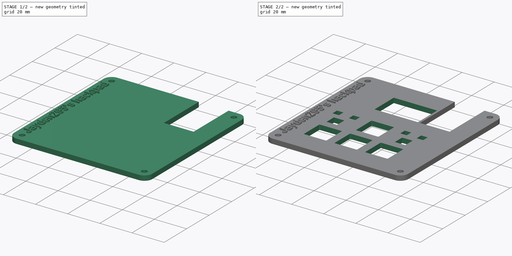
[diagram: build sequence overview — one tinted view per stage of 2, left to right]
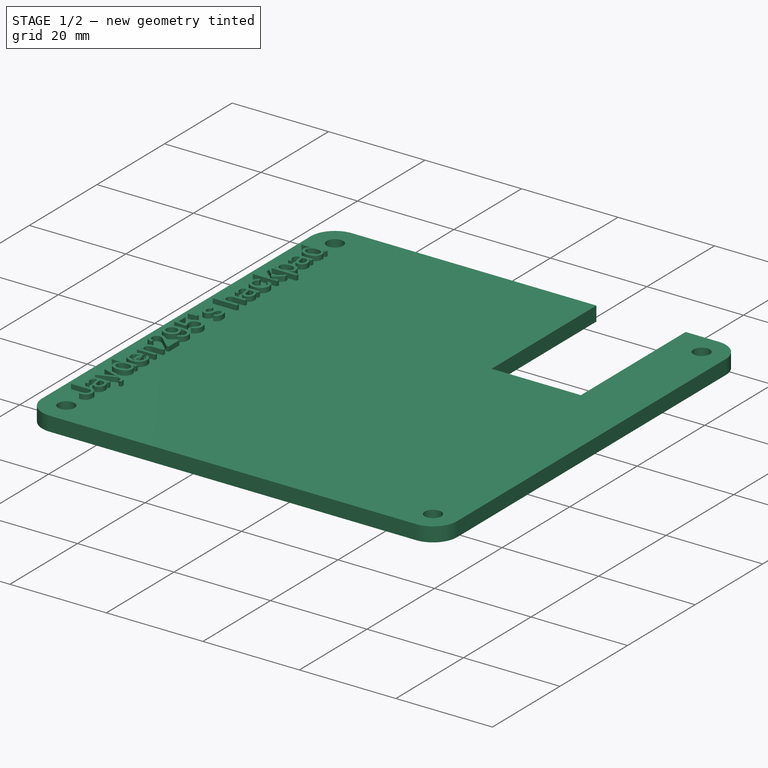
[diagram: stage 1 of 2 — iso view after this stage's code; geometry added in this stage tinted green]
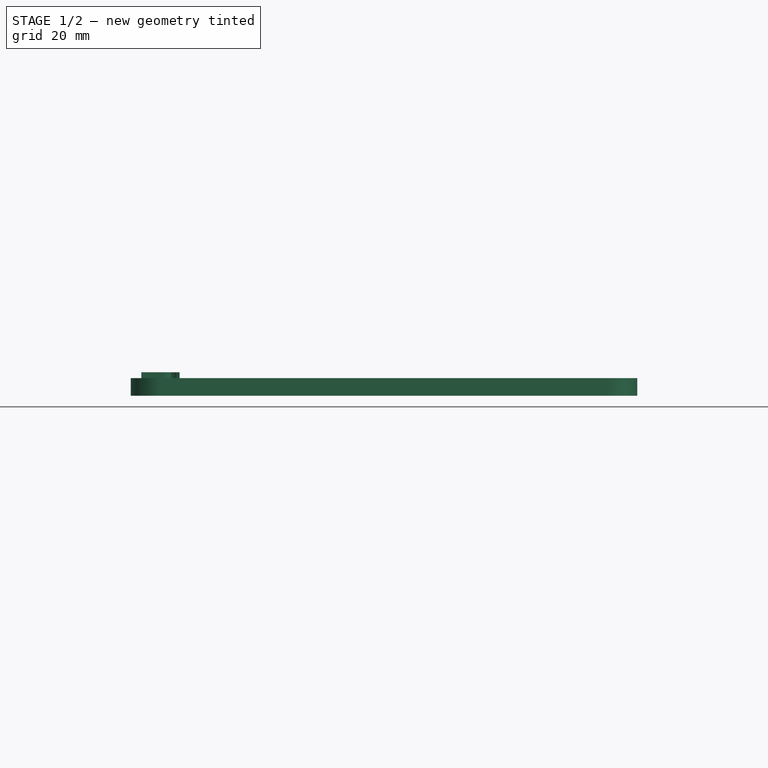
[diagram: stage 1 of 2 — front view after this stage's code; geometry added in this stage tinted green]
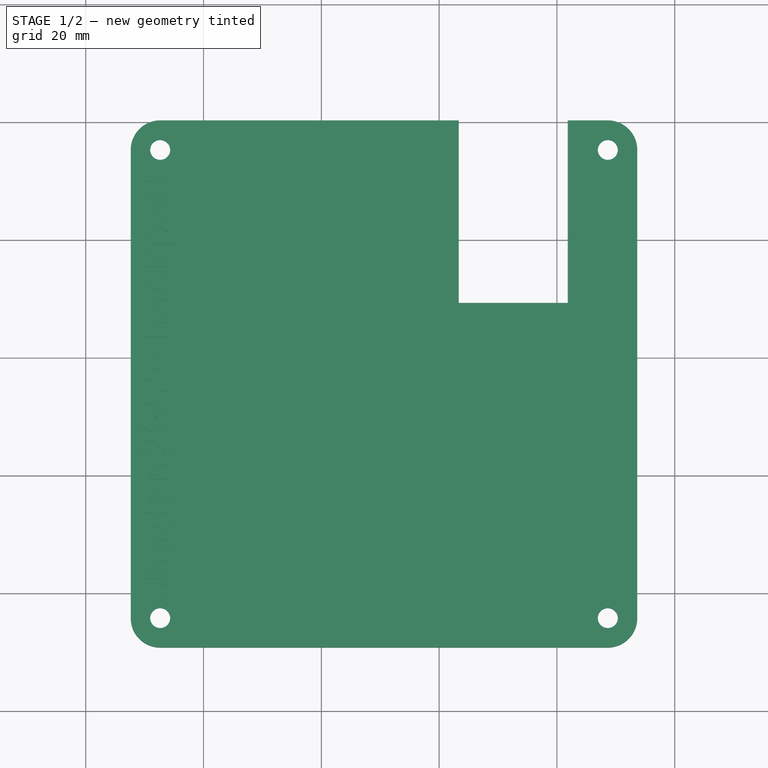
[diagram: stage 1 of 2 — top view after this stage's code; geometry added in this stage tinted green]
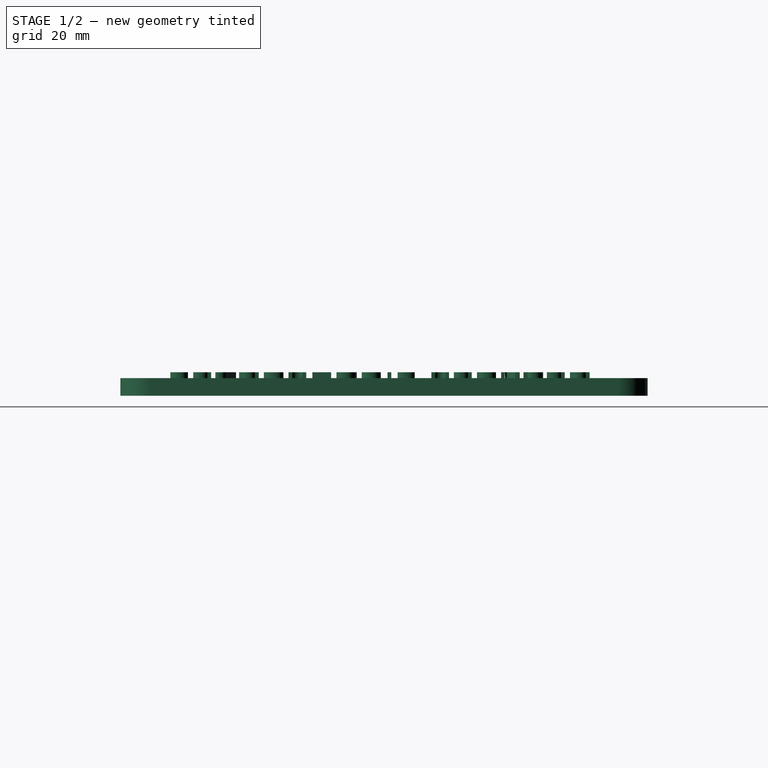
[diagram: stage 1 of 2 — right view after this stage's code; geometry added in this stage tinted green]
FCSTD DOCUMENT  (FreeCAD 1.0RUnknown)
Label: wasdup-plate
License: All rights reserved
LicenseURL: https://en.wikipedia.org/wiki/All_rights_reserved
objects: Sketcher::SketchObject×3, PartDesign::Pocket×2, PartDesign::Pad×1, Part::Part2DObjectPython×1, PartDesign::Body×1, Part::Extrusion×1
note: 18 computed .brp shape members not serialized (recipe doc carries the construction recipe); baked Part::Feature solids carry a one-line shape summary decoded from their .brp

FEATURE [Sketcher::SketchObject] Sketch  label="KeyboardSketch"
  ArcFitTolerance = 1e-06
  FullyConstrained = false
  MakeInternals = false
  sketch-geometry (32):
    g0: LineSegment StartX=22.075 StartY=-2.525 StartZ=0 EndX=35.075 EndY=-2.525 EndZ=0
    g1: LineSegment StartX=22.075 StartY=-16.525 StartZ=0 EndX=35.075 EndY=-16.525 EndZ=0
    g2: LineSegment StartX=21.575 StartY=-3.025 StartZ=0 EndX=21.575 EndY=-16.025 EndZ=0
    g3: LineSegment StartX=35.575 StartY=-3.025 StartZ=0 EndX=35.575 EndY=-16.025 EndZ=0
    g4: ArcOfCircle CenterX=22.075 CenterY=-3.025 CenterZ=0 NormalX=0 NormalY=0 NormalZ=1 AngleXU=0 Radius=0.5 StartAngle=1.5708 EndAngle=3.14159
    g5: ArcOfCircle CenterX=35.075 CenterY=-3.025 CenterZ=0 NormalX=0 NormalY=0 NormalZ=1 AngleXU=0 Radius=0.5 StartAngle=0 EndAngle=1.5708
    g6: ArcOfCircle CenterX=22.075 CenterY=-16.025 CenterZ=0 NormalX=0 NormalY=0 NormalZ=1 AngleXU=0 Radius=0.5 StartAngle=3.14159 EndAngle=4.71239
    g7: ArcOfCircle CenterX=35.075 CenterY=-16.025 CenterZ=0 NormalX=0 NormalY=0 NormalZ=1 AngleXU=0 Radius=0.5 StartAngle=4.71239 EndAngle=6.28319
    g8: LineSegment StartX=3.025 StartY=-21.575 StartZ=0 EndX=16.025 EndY=-21.575 EndZ=0
    g9: LineSegment StartX=3.025 StartY=-35.575 StartZ=0 EndX=16.025 EndY=-35.575 EndZ=0
    g10: LineSegment StartX=2.525 StartY=-22.075 StartZ=0 EndX=2.525 EndY=-35.075 EndZ=0
    g11: LineSegment StartX=16.525 StartY=-22.075 StartZ=0 EndX=16.525 EndY=-35.075 EndZ=0
    g12: ArcOfCircle CenterX=3.025 CenterY=-22.075 CenterZ=0 NormalX=0 NormalY=0 NormalZ=1 AngleXU=0 Radius=0.5 StartAngle=1.5708 EndAngle=3.14159
    g13: ArcOfCircle CenterX=16.025 CenterY=-22.075 CenterZ=0 NormalX=0 NormalY=0 NormalZ=1 AngleXU=0 Radius=0.5 StartAngle=0 EndAngle=1.5708
    g14: ArcOfCircle CenterX=3.025 CenterY=-35.075 CenterZ=0 NormalX=0 NormalY=0 NormalZ=1 AngleXU=0 Radius=0.5 StartAngle=3.14159 EndAngle=4.71239
    g15: ArcOfCircle CenterX=16.025 CenterY=-35.075 CenterZ=0 NormalX=0 NormalY=0 NormalZ=1 AngleXU=0 Radius=0.5 StartAngle=4.71239 EndAngle=6.28319
    g16: LineSegment StartX=22.075 StartY=-21.575 StartZ=0 EndX=35.075 EndY=-21.575 EndZ=0
    g17: LineSegment StartX=22.075 StartY=-35.575 StartZ=0 EndX=35.075 EndY=-35.575 EndZ=0
    g18: LineSegment StartX=21.575 StartY=-22.075 StartZ=0 EndX=21.575 EndY=-35.075 EndZ=0
    g19: LineSegment StartX=35.575 StartY=-22.075 StartZ=0 EndX=35.575 EndY=-35.075 EndZ=0
    g20: ArcOfCircle CenterX=22.075 CenterY=-22.075 CenterZ=0 NormalX=0 NormalY=0 NormalZ=1 AngleXU=0 Radius=0.5 StartAngle=1.5708 EndAngle=3.14159
    g21: ArcOfCircle CenterX=35.075 CenterY=-22.075 CenterZ=0 NormalX=0 NormalY=0 NormalZ=1 AngleXU=0 Radius=0.5 StartAngle=0 EndAngle=1.5708
    g22: ArcOfCircle CenterX=22.075 CenterY=-35.075 CenterZ=0 NormalX=0 NormalY=0 NormalZ=1 AngleXU=0 Radius=0.5 StartAngle=3.14159 EndAngle=4.71239
    g23: ArcOfCircle CenterX=35.075 CenterY=-35.075 CenterZ=0 NormalX=0 NormalY=0 NormalZ=1 AngleXU=0 Radius=0.5 StartAngle=4.71239 EndAngle=6.28319
    g24: LineSegment StartX=41.125 StartY=-21.575 StartZ=0 EndX=54.125 EndY=-21.575 EndZ=0
    g25: LineSegment StartX=41.125 StartY=-35.575 StartZ=0 EndX=54.125 EndY=-35.575 EndZ=0
    g26: LineSegment StartX=40.625 StartY=-22.075 StartZ=0 EndX=40.625 EndY=-35.075 EndZ=0
    g27: LineSegment StartX=54.625 StartY=-22.075 StartZ=0 EndX=54.625 EndY=-35.075 EndZ=0
    g28: ArcOfCircle CenterX=41.125 CenterY=-22.075 CenterZ=0 NormalX=0 NormalY=0 NormalZ=1 AngleXU=0 Radius=0.5 StartAngle=1.5708 EndAngle=3.14159
    g29: ArcOfCircle CenterX=54.125 CenterY=-22.075 CenterZ=0 NormalX=0 NormalY=0 NormalZ=1 AngleXU=0 Radius=0.5 StartAngle=0 EndAngle=1.5708
    g30: ArcOfCircle CenterX=41.125 CenterY=-35.075 CenterZ=0 NormalX=0 NormalY=0 NormalZ=1 AngleXU=0 Radius=0.5 StartAngle=3.14159 EndAngle=4.71239
    g31: ArcOfCircle CenterX=54.125 CenterY=-35.075 CenterZ=0 NormalX=0 NormalY=0 NormalZ=1 AngleXU=0 Radius=0.5 StartAngle=4.71239 EndAngle=6.28319
  constraints (32):
    c: Coincident(g10,g14)
    c: Coincident(g10,g12)
    c: Coincident(g9,g14)
    c: Coincident(g8,g12)
    c: Coincident(g9,g15)
    c: Coincident(g8,g13)
    c: Coincident(g11,g15)
    c: Coincident(g11,g13)
    c: Coincident(g18,g22)
    c: Coincident(g18,g20)
    c: Coincident(g2,g6)
    c: Coincident(g2,g4)
    c: Coincident(g17,g22)
    c: Coincident(g16,g20)
    c: Coincident(g1,g6)
    c: Coincident(g0,g4)
    c: Coincident(g17,g23)
    c: Coincident(g16,g21)
    c: Coincident(g1,g7)
    c: Coincident(g0,g5)
    c: Coincident(g19,g23)
    c: Coincident(g19,g21)
    c: Coincident(g3,g7)
    c: Coincident(g3,g5)
    c: Coincident(g26,g30)
    c: Coincident(g26,g28)
    c: Coincident(g25,g30)
    c: Coincident(g24,g28)
    c: Coincident(g25,g31)
    c: Coincident(g24,g29)
    c: Coincident(g27,g31)
    c: Coincident(g27,g29)
FEATURE [Sketcher::SketchObject] Sketch002  label="MainShapeSketch"
  ArcFitTolerance = 1e-06
  AttachmentSupport = -> [XY_Plane]
  ExternalGeometry = -> [Sketch]
  FullyConstrained = false
  MakeInternals = false
  MapMode = 5
  sketch-geometry (18):
    g0: LineSegment StartX=-12.365 StartY=35.298 StartZ=0 EndX=-12.365 EndY=-44.202 EndZ=0
    g1: LineSegment StartX=-7.365 StartY=-49.202 StartZ=0 EndX=68.635 EndY=-49.202 EndZ=0
    g2: LineSegment StartX=73.635 StartY=-44.202 StartZ=0 EndX=73.635 EndY=35.298 EndZ=0
    g3: LineSegment StartX=68.635 StartY=40.298 StartZ=0 EndX=61.825 EndY=40.298 EndZ=0
    g4: ArcOfCircle CenterX=-7.365 CenterY=35.298 CenterZ=0 NormalX=0 NormalY=0 NormalZ=1 AngleXU=0 Radius=5 StartAngle=1.5708 EndAngle=3.14159
    g5: ArcOfCircle CenterX=-7.365 CenterY=-44.202 CenterZ=0 NormalX=0 NormalY=0 NormalZ=1 AngleXU=0 Radius=5 StartAngle=3.14159 EndAngle=4.71239
    g6: ArcOfCircle CenterX=68.635 CenterY=-44.202 CenterZ=0 NormalX=0 NormalY=0 NormalZ=1 AngleXU=0 Radius=5 StartAngle=4.71239 EndAngle=6.28319
    g7: ArcOfCircle CenterX=68.635 CenterY=35.298 CenterZ=0 NormalX=0 NormalY=0 NormalZ=1 AngleXU=0 Radius=5 StartAngle=0 EndAngle=1.5708
    g8: GeomPoint [constr] X=-12.365 Y=40.298 Z=0
    g9: GeomPoint [constr] X=73.635 Y=-49.202 Z=0
    g10: Circle CenterX=-7.365 CenterY=35.298 CenterZ=0 NormalX=0 NormalY=0 NormalZ=1 AngleXU=0 Radius=1.7
    g11: Circle CenterX=68.635 CenterY=35.298 CenterZ=0 NormalX=0 NormalY=0 NormalZ=1 AngleXU=0 Radius=1.7
    g12: Circle CenterX=-7.365 CenterY=-44.202 CenterZ=0 NormalX=0 NormalY=0 NormalZ=1 AngleXU=0 Radius=1.7
    g13: Circle CenterX=68.635 CenterY=-44.202 CenterZ=0 NormalX=0 NormalY=0 NormalZ=1 AngleXU=0 Radius=1.7
    g14: LineSegment StartX=61.825 StartY=9.298 StartZ=0 EndX=61.825 EndY=40.298 EndZ=0
    g15: LineSegment StartX=43.325 StartY=40.298 StartZ=0 EndX=43.325 EndY=9.298 EndZ=0
    g16: LineSegment StartX=43.325 StartY=9.298 StartZ=0 EndX=61.825 EndY=9.298 EndZ=0
    g17: LineSegment StartX=-7.365 StartY=40.298 StartZ=0 EndX=43.325 EndY=40.298 EndZ=0
  constraints (50):
    c: Tangent(g0,g4) = -1.5708
    c: Tangent(g0,g5) = -1.5708
    c: Tangent(g1,g5) = -1.5708
    c: Tangent(g1,g6) = -1.5708
    c: Tangent(g2,g6) = -1.5708
    c: Tangent(g2,g7) = -1.5708
    c: Tangent(g3,g7) = -1.5708
    c: Vertical(g0)
    c: Vertical(g2)
    c: Horizontal(g1)
    c: Horizontal(g3)
    c: Equal(g4,g5)
    c: Equal(g5,g6)
    c: Equal(g6,g7)
    c: PointOnObject(g8,g0)
    c: PointOnObject(g9,g1)
    c: PointOnObject(g9,g2)
    c: Radius(g4) = 5
    c: DistanceX(g4,g3) = 76
    c: DistanceY(g0,g0) = 79.5
    c: Distance(g1,g-3) = 13.627
    c: Distance(g0,g-4) = 14.89
    c: Diameter(g10) = 3.4
    c: Distance(g10,g0) = 5
    c: Distance(g10,g3) = 5
    c: Diameter(g11) = 3.4
    c: Distance(g11,g2) = 5
    c: Distance(g11,g3) = 5
    c: Diameter(g12) = 3.4
    c: Distance(g12,g0) = 5
    c: Distance(g12,g1) = 5
    c: Diameter(g13) = 3.4
    c: Distance(g13,g2) = 5
    c: Distance(g13,g1) = 5
    c: Coincident(g15,g16)
    c: Coincident(g16,g14)
    c: Vertical(g14)
    c: Vertical(g15)
    c: Horizontal(g16)
    c: Distance(g14,g15) = 18.5
    c: Distance(g14,g16) = 31
    c: Distance(g0,g15) = 55.69
    c: PointOnObject(g3,g14)
    c: Block(g15)
    c: Block(g3)
    c: Block(g14)
    c: Tangent(g17,g4) = 1.5708
    c: Coincident(g17,g15)
    c: Horizontal(g17)
    c: Block(g17)
FEATURE [PartDesign::Pad] Pad  label="MainShape"
  Direction = (0,0,1)
  Length = 3
  Length2 = 10
  Profile = -> Sketch002
  ReferenceAxis = -> Sketch002 [N_Axis]
  Refine = true
  Suppressed = false
  Type = 0
FEATURE [Part::Part2DObjectPython] ShapeString  # Draft 2D object (typed FeaturePython)
  FontFile = <userpath>/Downloads/Inter-4.1/InterVariable.ttf
  Fuse = false
  Justification = 6
  JustificationReference = 0
  KeepLeftMargin = false
  MakeFace = true
  ObliqueAngle = 0
  Placement = pos=(-5.49,-40.73,3) rot=(0,0,1;1.5708rad)
  ScaleToSize = true
  Size = 5
  String = Jayden295's hackpad
  Tracking = 0
FEATURE [PartDesign::Body] Body
  AllowCompound = false
  Group = -> [Sketch,Sketch002,Pad,Pocket,Sketch003,Pocket001,ShapeString]
  Origin = -> Origin
  Tip = -> Pocket001
FEATURE [Part::Extrusion] Extrude
  Base = -> ShapeString
  Dir = (0,0,1)
  DirMode = 2
  FaceMakerClass = Part::FaceMakerBullseye
  FaceMakerMode = 3
  LengthFwd = 1
  LengthRev = 0
  Solid = false
  Symmetric = false
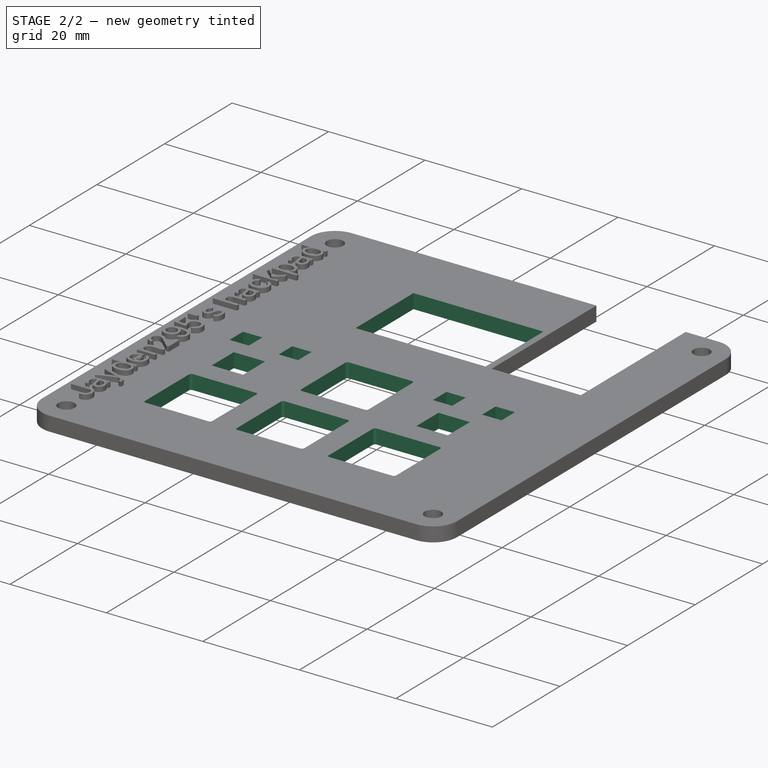
[diagram: stage 2 of 2 — iso view after this stage's code; geometry added in this stage tinted green]
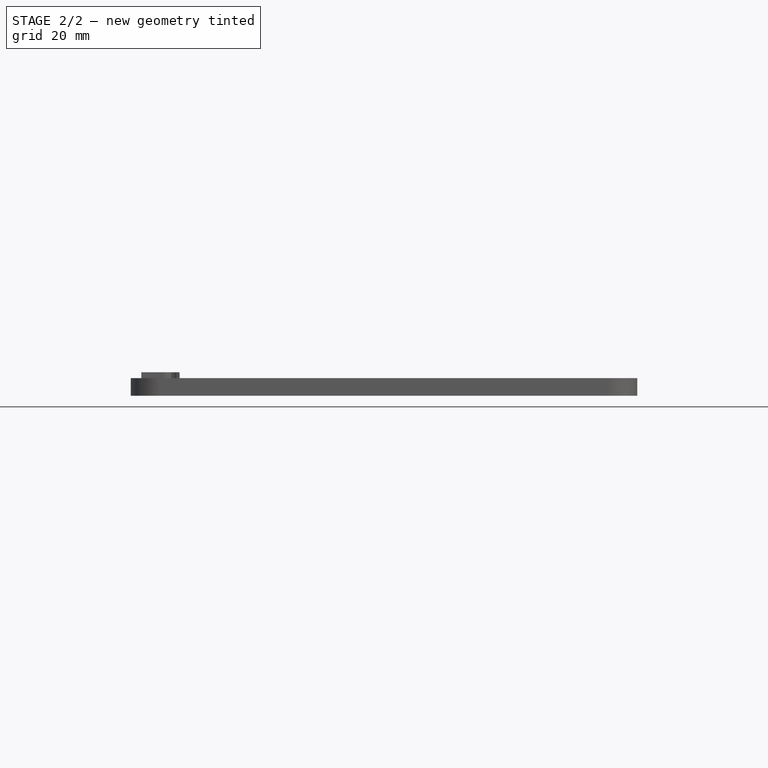
[diagram: stage 2 of 2 — front view after this stage's code; geometry added in this stage tinted green]
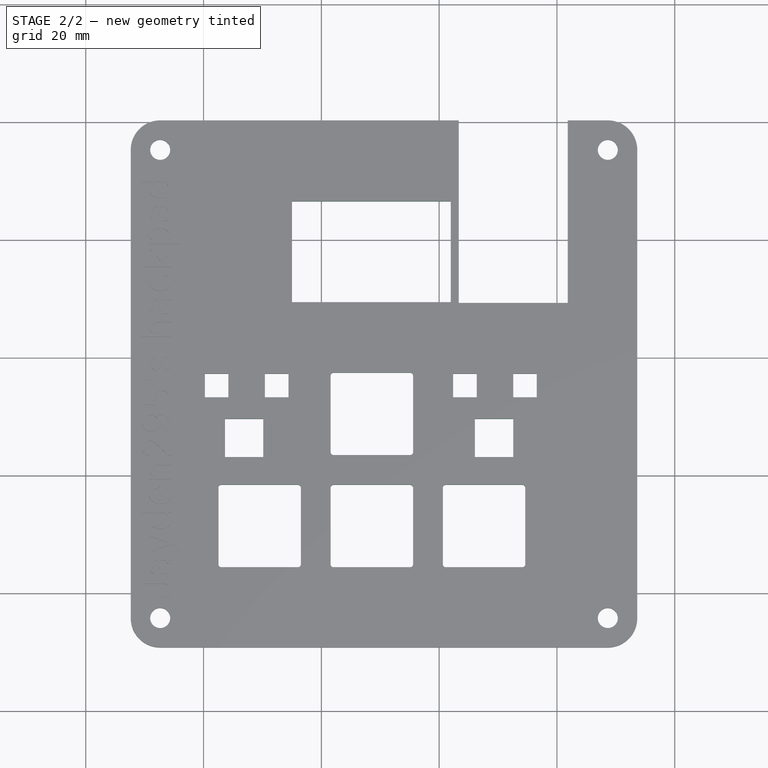
[diagram: stage 2 of 2 — top view after this stage's code; geometry added in this stage tinted green]
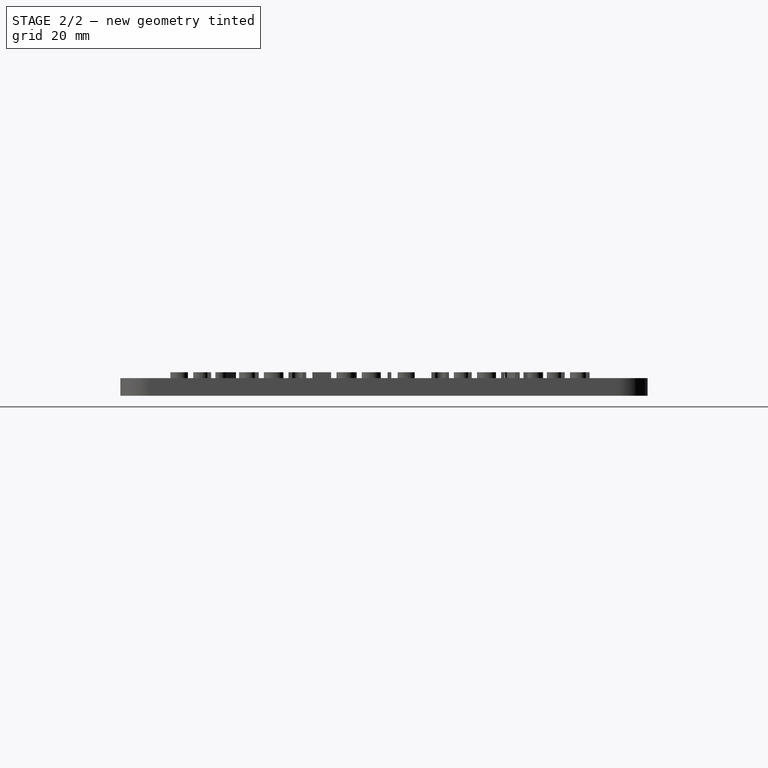
[diagram: stage 2 of 2 — right view after this stage's code; geometry added in this stage tinted green]
FEATURE [PartDesign::Pocket] Pocket  label="Keyboard"
  BaseFeature = -> Pad
  Direction = (0,0,-1)
  Length = 10
  Length2 = 5
  Profile = -> Sketch
  ReferenceAxis = -> Sketch [N_Axis]
  Refine = true
  Reversed = true
  Suppressed = false
  Type = 0
FEATURE [Sketcher::SketchObject] Sketch003  label="OtherSketch"
  ArcFitTolerance = 1e-06
  AttachmentSupport = -> [Pocket]
  ExternalGeometry = -> [Pocket]
  FullyConstrained = true
  MakeInternals = false
  MapMode = 5
  Placement = pos=(0,0,3) rot=(0,0,1;0rad)
  sketch-geometry (28):
    g0: LineSegment StartX=15.025 StartY=26.56 StartZ=0 EndX=15.025 EndY=9.435 EndZ=0
    g1: LineSegment StartX=15.025 StartY=9.435 StartZ=0 EndX=41.965 EndY=9.435 EndZ=0
    g2: LineSegment StartX=41.965 StartY=9.435 StartZ=0 EndX=41.965 EndY=26.56 EndZ=0
    g3: LineSegment StartX=41.965 StartY=26.56 StartZ=0 EndX=15.025 EndY=26.56 EndZ=0
    g4: LineSegment StartX=3.64 StartY=-10.375 StartZ=0 EndX=3.64 EndY=-16.875 EndZ=0
    g5: LineSegment StartX=3.64 StartY=-16.875 StartZ=0 EndX=10.14 EndY=-16.875 EndZ=0
    g6: LineSegment StartX=10.14 StartY=-16.875 StartZ=0 EndX=10.14 EndY=-10.375 EndZ=0
    g7: LineSegment StartX=10.14 StartY=-10.375 StartZ=0 EndX=3.64 EndY=-10.375 EndZ=0
    g8: LineSegment StartX=52.575 StartY=-10.375 StartZ=0 EndX=46.075 EndY=-10.375 EndZ=0
    g9: LineSegment StartX=46.075 StartY=-10.375 StartZ=0 EndX=46.075 EndY=-16.875 EndZ=0
    g10: LineSegment StartX=46.075 StartY=-16.875 StartZ=0 EndX=52.575 EndY=-16.875 EndZ=0
    g11: LineSegment StartX=52.575 StartY=-16.875 StartZ=0 EndX=52.575 EndY=-10.375 EndZ=0
    g12: LineSegment StartX=0.215 StartY=-6.725 StartZ=0 EndX=4.215 EndY=-6.725 EndZ=0
    g13: LineSegment StartX=4.215 StartY=-6.725 StartZ=0 EndX=4.215 EndY=-2.725 EndZ=0
    g14: LineSegment StartX=4.215 StartY=-2.725 StartZ=0 EndX=0.215 EndY=-2.725 EndZ=0
    g15: LineSegment StartX=0.215 StartY=-2.725 StartZ=0 EndX=0.215 EndY=-6.725 EndZ=0
    g16: LineSegment StartX=10.415 StartY=-2.725 StartZ=0 EndX=10.415 EndY=-6.725 EndZ=0
    g17: LineSegment StartX=10.415 StartY=-6.725 StartZ=0 EndX=14.415 EndY=-6.725 EndZ=0
    g18: LineSegment StartX=14.415 StartY=-6.725 StartZ=0 EndX=14.415 EndY=-2.725 EndZ=0
    g19: LineSegment StartX=14.415 StartY=-2.725 StartZ=0 EndX=10.415 EndY=-2.725 EndZ=0
    g20: LineSegment StartX=42.375 StartY=-2.725 StartZ=0 EndX=42.375 EndY=-6.725 EndZ=0
    g21: LineSegment StartX=42.375 StartY=-6.725 StartZ=0 EndX=46.375 EndY=-6.725 EndZ=0
    g22: LineSegment StartX=46.375 StartY=-6.725 StartZ=0 EndX=46.375 EndY=-2.725 EndZ=0
    g23: LineSegment StartX=46.375 StartY=-2.725 StartZ=0 EndX=42.375 EndY=-2.725 EndZ=0
    g24: LineSegment StartX=52.575 StartY=-2.725 StartZ=0 EndX=52.575 EndY=-6.725 EndZ=0
    g25: LineSegment StartX=52.575 StartY=-6.725 StartZ=0 EndX=56.575 EndY=-6.725 EndZ=0
    g26: LineSegment StartX=56.575 StartY=-6.725 StartZ=0 EndX=56.575 EndY=-2.725 EndZ=0
    g27: LineSegment StartX=56.575 StartY=-2.725 StartZ=0 EndX=52.575 EndY=-2.725 EndZ=0
  constraints (84):
    c: Coincident(g0,g1)
    c: Coincident(g1,g2)
    c: Coincident(g2,g3)
    c: Coincident(g3,g0)
    c: Vertical(g0)
    c: Vertical(g2)
    c: Horizontal(g1)
    c: Horizontal(g3)
    c: Distance(g0,g2) = 26.94
    c: Distance(g1,g3) = 17.125
    c: Distance(g-3,g0) = 27.39
    c: Distance(g-4,g1) = 11.96
    c: Coincident(g4,g5)
    c: Coincident(g5,g6)
    c: Coincident(g6,g7)
    c: Coincident(g7,g4)
    c: Vertical(g4)
    c: Vertical(g6)
    c: Horizontal(g5)
    c: Horizontal(g7)
    c: Distance(g4,g6) = 6.5
    c: Distance(g5,g7) = 6.5
    c: Distance(g-5,g6) = 11.435
    c: Distance(g-7,g5) = 4.7
    c: Coincident(g8,g9)
    c: Coincident(g9,g10)
    c: Coincident(g10,g11)
    c: Coincident(g11,g8)
    c: Horizontal(g8)
    c: Horizontal(g10)
    c: Vertical(g9)
    c: Vertical(g11)
    c: Distance(g9,g11) = 6.5
    c: Distance(g8,g10) = 6.5
    c: Distance(g-8,g10) = 4.7
    c: Distance(g-6,g9) = 10.5
    c: Coincident(g12,g13)
    c: Coincident(g13,g14)
    c: Coincident(g14,g15)
    c: Coincident(g15,g12)
    c: Horizontal(g12)
    c: Horizontal(g14)
    c: Vertical(g13)
    c: Vertical(g15)
    c: Distance(g13,g15) = 4
    c: Distance(g12,g14) = 4
    c: Distance(g7,g12) = 3.65
    c: Distance(g-5,g13) = 17.36
    c: Coincident(g16,g17)
    c: Coincident(g17,g18)
    c: Coincident(g18,g19)
    c: Coincident(g19,g16)
    c: Vertical(g16)
    c: Vertical(g18)
    c: Horizontal(g17)
    c: Horizontal(g19)
    c: Distance(g16,g18) = 4
    c: Distance(g17,g19) = 4
    c: Distance(g13,g16) = 6.2
    c: Distance(g7,g17) = 3.65
    c: Coincident(g20,g21)
    c: Coincident(g21,g22)
    c: Coincident(g22,g23)
    c: Coincident(g23,g20)
    c: Vertical(g20)
    c: Vertical(g22)
    c: Horizontal(g21)
    c: Horizontal(g23)
    c: Distance(g20,g22) = 4
    c: Distance(g21,g23) = 4
    c: Distance(g8,g21) = 3.65
    c: Distance(g-6,g20) = 6.8
    c: Coincident(g24,g25)
    c: Coincident(g25,g26)
    c: Coincident(g26,g27)
    c: Coincident(g27,g24)
    c: Vertical(g24)
    c: Vertical(g26)
    c: Horizontal(g25)
    c: Horizontal(g27)
    c: Distance(g24,g26) = 4
    c: Distance(g25,g27) = 4
    c: Distance(g8,g25) = 3.65
    c: Distance(g24,g22) = 6.2
FEATURE [PartDesign::Pocket] Pocket001  label="OtherButtonsScreens"
  BaseFeature = -> Pocket
  Direction = (0,0,-1)
  Length = 10
  Length2 = 5
  Profile = -> Sketch003
  ReferenceAxis = -> Sketch003 [N_Axis]
  Refine = true
  Suppressed = false
  Type = 0
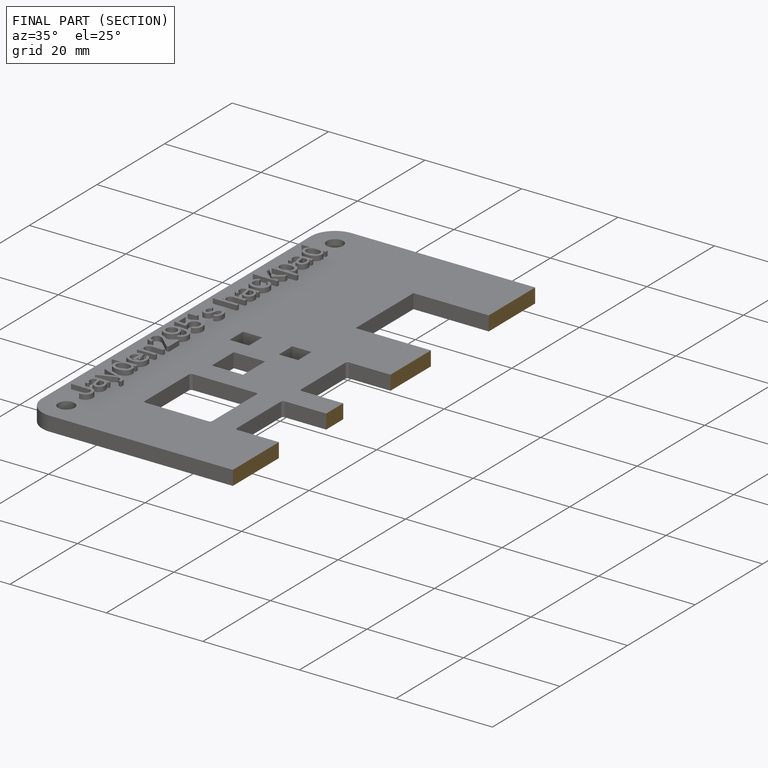
[diagram: finished part — half-section view (interior)]
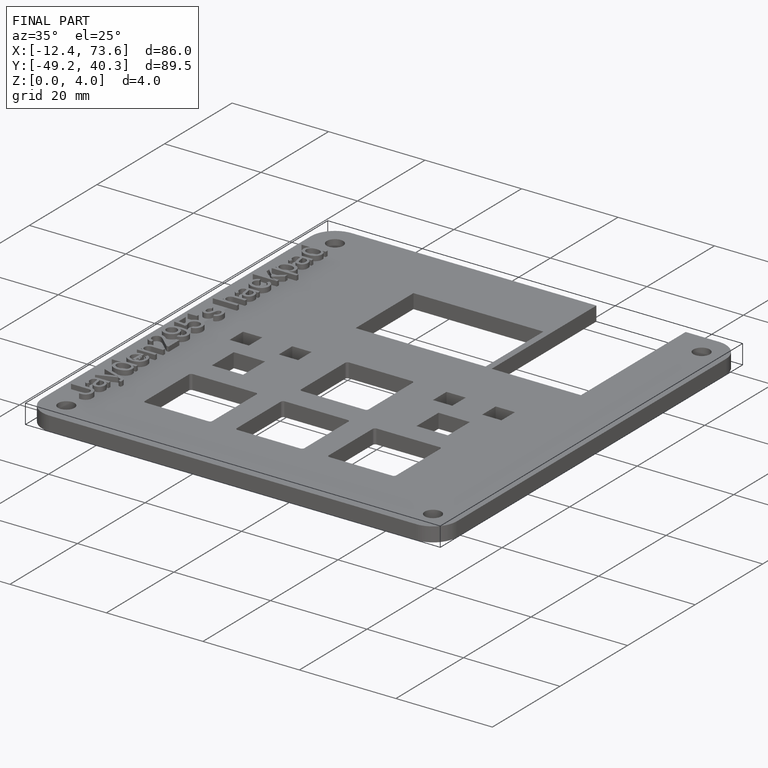
[diagram: finished part — iso view with bounding-box wireframe]
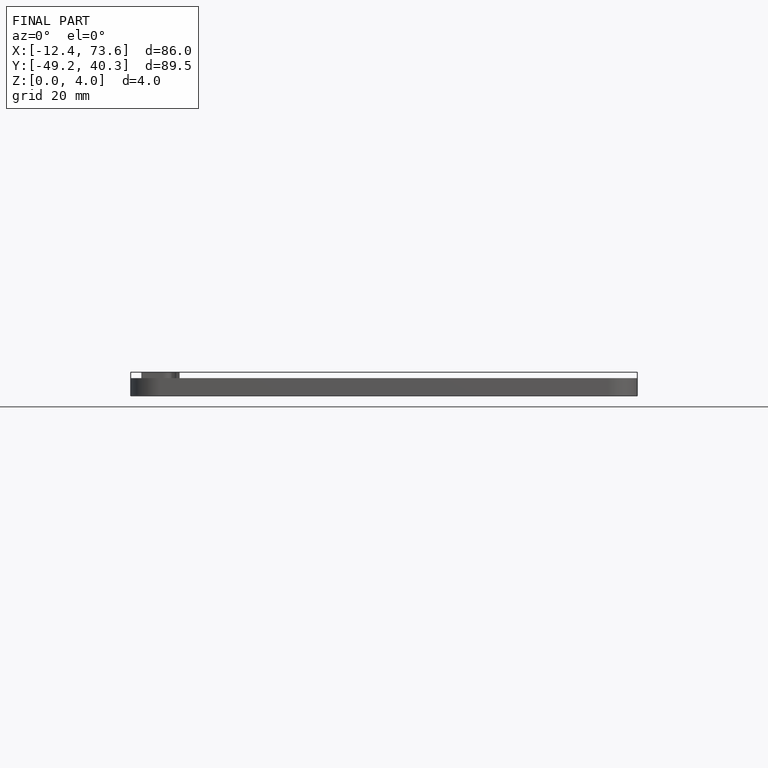
[diagram: finished part — front view with bounding-box wireframe]
